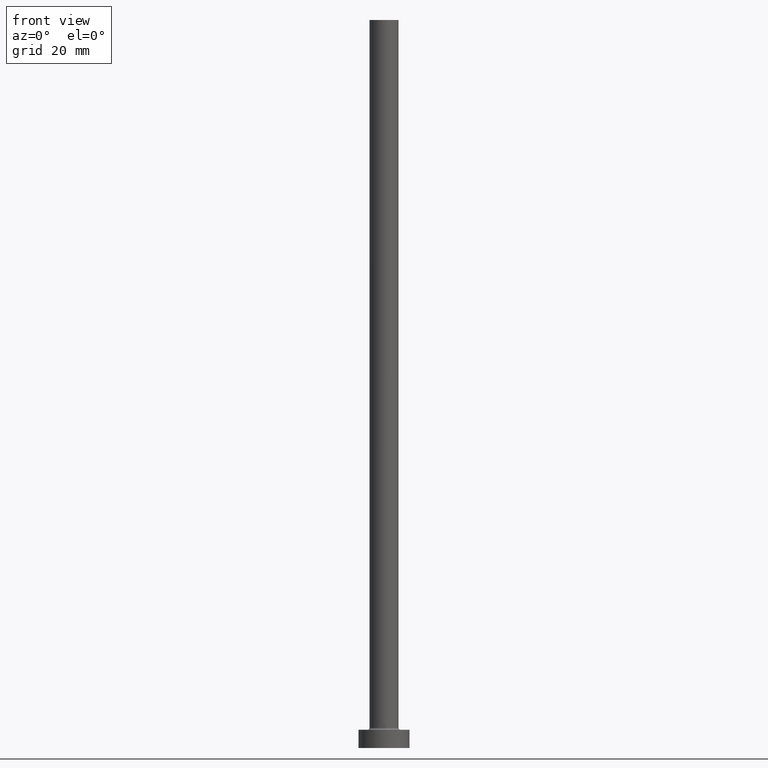
[diagram: clean part render]
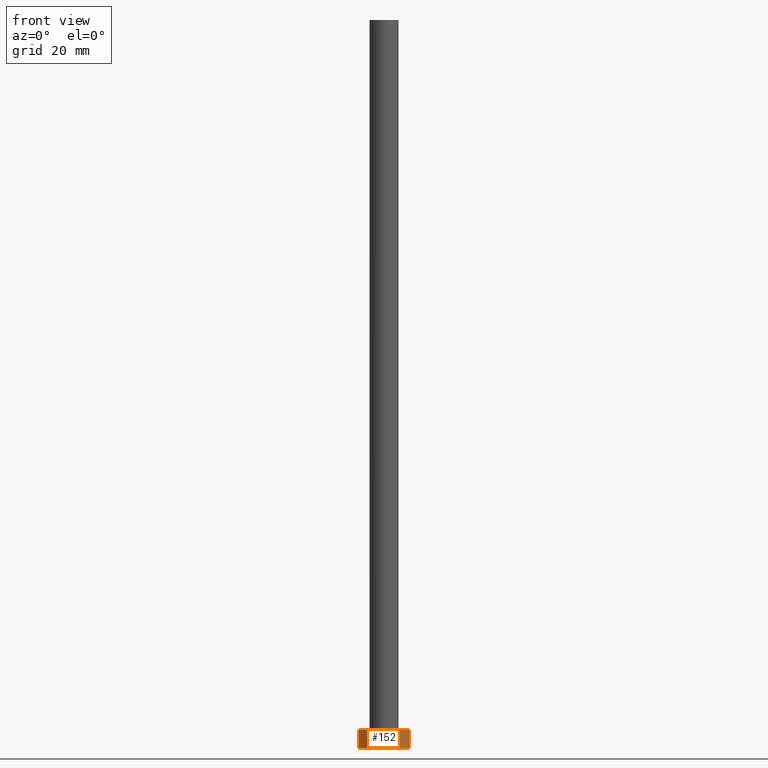
[diagram: same view with one face highlighted and labeled with its STEP entity id]
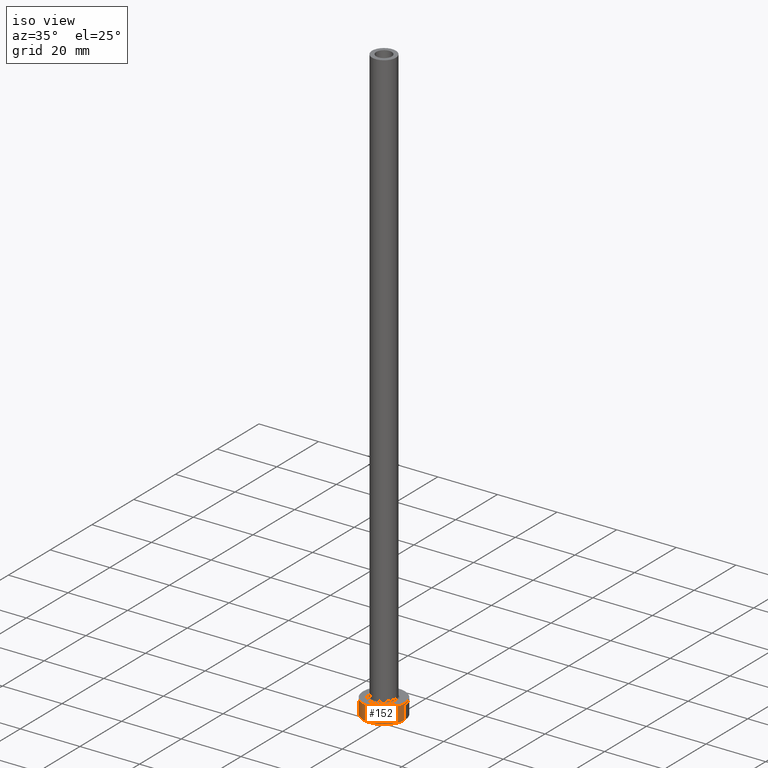
[diagram: same view with one face highlighted and labeled with its STEP entity id]
A machine part, front view. The second image highlights one B-rep face of the part: STEP entity #152.
A second angle (iso view) of the same face is appended — the face is thin or edge-on in the first view.
In plain terms, the highlighted cylindrical surface (edge-blend (fillet) strip) has radius 7 mm, axis along (-0, -0, -1).
Its self-contained STEP definition (entity closure, byte-faithful):
#7 = DIRECTION ( 'NONE',  ( -1.000000000000000000, 0.000000000000000000, 0.000000000000000000 ) ) ;
#9 = DIRECTION ( 'NONE',  ( -0.000000000000000000, -0.000000000000000000, -1.000000000000000000 ) ) ;
#36 = CARTESIAN_POINT ( 'NONE',  ( 7.000000000000000000, 8.572527594031473190E-16, 5.000000000000000000 ) ) ;
#52 = CARTESIAN_POINT ( 'NONE',  ( -7.000000000000000000, 0.000000000000000000, 0.000000000000000000 ) ) ;
#56 = DIRECTION ( 'NONE',  ( 0.000000000000000000, 0.000000000000000000, 1.000000000000000000 ) ) ;
#59 = DIRECTION ( 'NONE',  ( -0.000000000000000000, -0.000000000000000000, -1.000000000000000000 ) ) ;
#60 = VECTOR ( 'NONE', #59, 1000.000000000000000 ) ;
#82 = VERTEX_POINT ( 'NONE', #36 ) ;
#88 = DIRECTION ( 'NONE',  ( 1.000000000000000000, 0.000000000000000000, 0.000000000000000000 ) ) ;
#104 = CARTESIAN_POINT ( 'NONE',  ( 0.000000000000000000, 0.000000000000000000, 0.000000000000000000 ) ) ;
#114 = VERTEX_POINT ( 'NONE', #292 ) ;
#152 = ADVANCED_FACE ( 'NONE', ( #403 ), #250, .T. ) ;
#203 = ORIENTED_EDGE ( 'NONE', *, *, #358, .F. ) ;
#210 = LINE ( 'NONE', #328, #411 ) ;
#212 = CARTESIAN_POINT ( 'NONE',  ( 0.000000000000000000, 0.000000000000000000, 5.000000000000000000 ) ) ;
#223 = ORIENTED_EDGE ( 'NONE', *, *, #259, .F. ) ;
#233 = ORIENTED_EDGE ( 'NONE', *, *, #273, .T. ) ;
#234 = DIRECTION ( 'NONE',  ( -0.000000000000000000, -0.000000000000000000, -1.000000000000000000 ) ) ;
#239 = CIRCLE ( 'NONE', #302, 7.000000000000000000 ) ;
#245 = DIRECTION ( 'NONE',  ( 0.000000000000000000, 0.000000000000000000, 1.000000000000000000 ) ) ;
#250 = CYLINDRICAL_SURFACE ( 'NONE', #258, 7.000000000000000000 ) ;
#258 = AXIS2_PLACEMENT_3D ( 'NONE', #212, #9, #7 ) ;
#259 = EDGE_CURVE ( 'NONE', #82, #402, #210, .T. ) ;
#270 = AXIS2_PLACEMENT_3D ( 'NONE', #104, #245, #395 ) ;
#273 = EDGE_CURVE ( 'NONE', #114, #371, #304, .T. ) ;
#292 = CARTESIAN_POINT ( 'NONE',  ( -7.000000000000000000, 0.000000000000000000, 5.000000000000000000 ) ) ;
#302 = AXIS2_PLACEMENT_3D ( 'NONE', #455, #56, #88 ) ;
#304 = LINE ( 'NONE', #445, #60 ) ;
#328 = CARTESIAN_POINT ( 'NONE',  ( 7.000000000000000000, 8.572527594031473190E-16, 5.000000000000000000 ) ) ;
#355 = ORIENTED_EDGE ( 'NONE', *, *, #441, .T. ) ;
#358 = EDGE_CURVE ( 'NONE', #114, #82, #239, .T. ) ;
#360 = CARTESIAN_POINT ( 'NONE',  ( 7.000000000000000000, 8.572527594031473190E-16, 0.000000000000000000 ) ) ;
#371 = VERTEX_POINT ( 'NONE', #52 ) ;
#391 = EDGE_LOOP ( 'NONE', ( #223, #203, #233, #355 ) ) ;
#395 = DIRECTION ( 'NONE',  ( 1.000000000000000000, 0.000000000000000000, 0.000000000000000000 ) ) ;
#396 = CIRCLE ( 'NONE', #270, 7.000000000000000000 ) ;
#402 = VERTEX_POINT ( 'NONE', #360 ) ;
#403 = FACE_OUTER_BOUND ( 'NONE', #391, .T. ) ;
#411 = VECTOR ( 'NONE', #234, 1000.000000000000000 ) ;
#441 = EDGE_CURVE ( 'NONE', #371, #402, #396, .T. ) ;
#445 = CARTESIAN_POINT ( 'NONE',  ( -7.000000000000000000, 0.000000000000000000, 5.000000000000000000 ) ) ;
#455 = CARTESIAN_POINT ( 'NONE',  ( 0.000000000000000000, 0.000000000000000000, 5.000000000000000000 ) ) ;